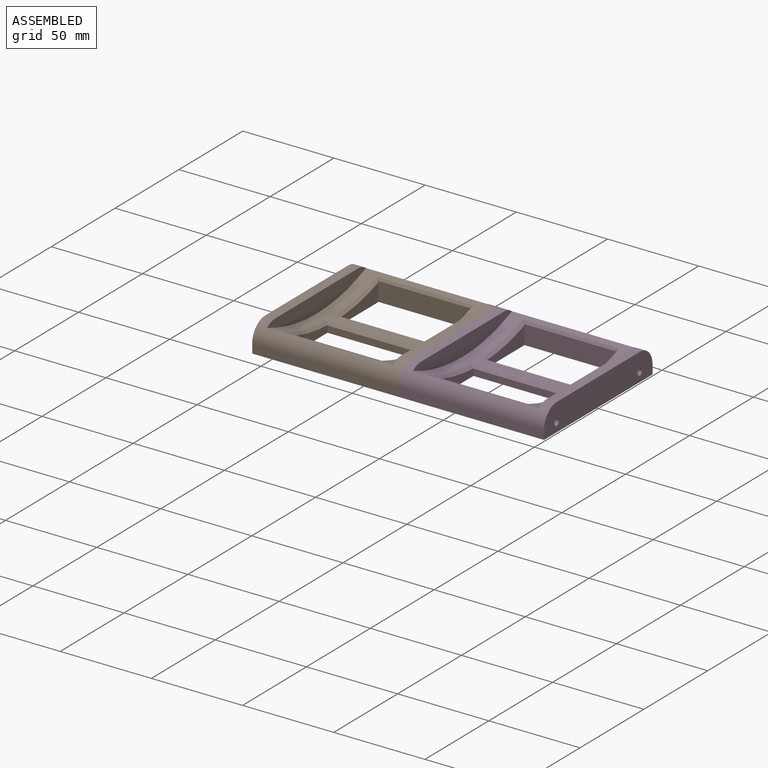
[diagram: assembled view]
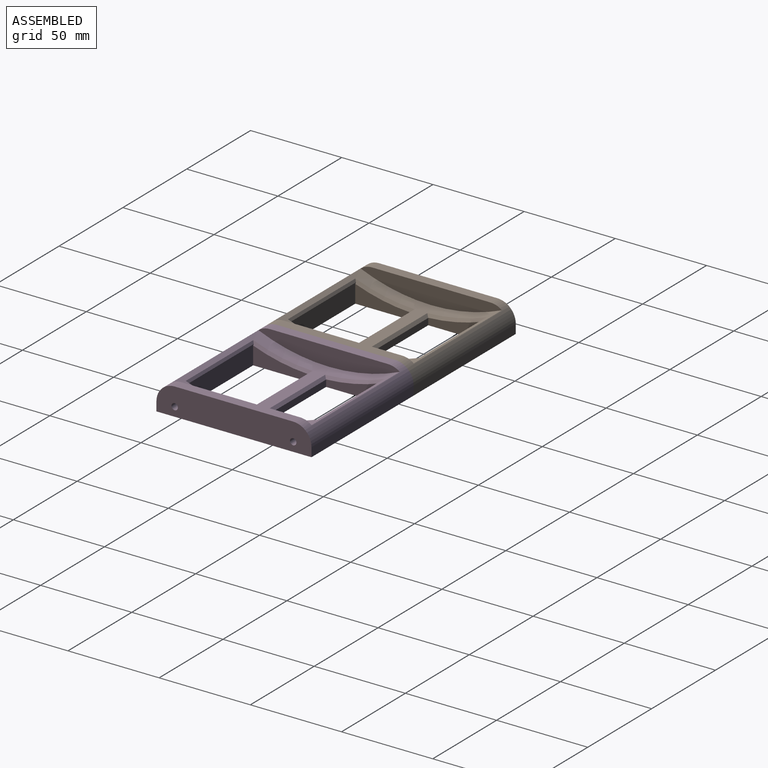
[diagram: assembled view, second angle]
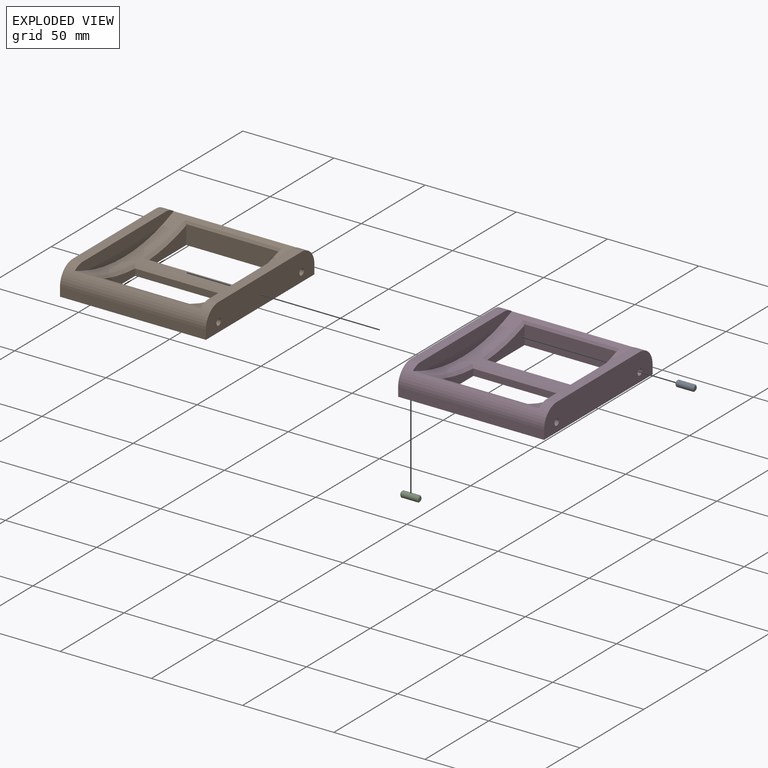
[diagram: exploded view]
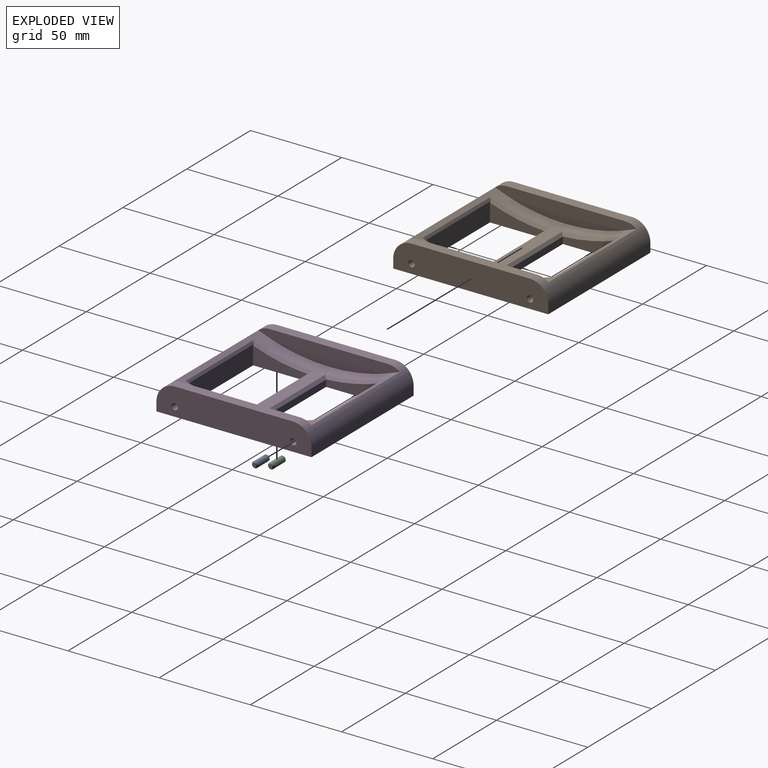
[diagram: exploded view, second angle]
ASSEMBLY  parts=4 mates=7
PART A: 5 faces, bbox 3.4x3.4x10 mm
  f0: cylinder r=1.7mm len=9mm, axis (0,0,-1), area 96.1mm2, adj f3,f4
  f1: plane 2.4x2.4mm, normal (0,0,1), area 4.5mm2, adj f3
  f2: plane 2.4x2.4mm, normal (0,0,-1), area 4.5mm2, adj f4
  f3: cone r=1.2mm half-angle=45deg, axis (0,0,-1), area 6.4mm2, adj f0,f1
  f4: cone r=1.7mm half-angle=45deg, axis (0,0,1), area 6.4mm2, adj f0,f2
PART B: 36 faces, bbox 80x85x15 mm
  f0: plane 30.06x9.79mm, normal (-1,0,0), area 178.3mm2, adj f8,f13,f16,f26,f27
  f1: plane 30.06x9.79mm, normal (1,0,0), area 178.3mm2, adj f8,f13,f16,f24,f26
  f2: plane 80x5mm, normal (0,-1,0), area 400mm2, adj f5,f6,f8,f19
  f3: plane 80x5mm, normal (0,1,0), area 400mm2, adj f5,f6,f8,f18
  f4: plane 65x5.5mm, normal (0,0,1), area 357.5mm2, adj f6,f10,f18,f19
  f5: plane 85x15mm, normal (1,0,0), area 1212.8mm2, adj f2,f3,f7,f8,f18,f19,f28,f30
  f6: plane 85x15mm, normal (-1,0,0), area 1212.8mm2, adj f2,f3,f4,f8,f18,f19,f32,f34
  f7: plane 65x5.5mm, normal (0,0,1), area 357.5mm2, adj f5,f11,f18,f19
  f8: plane 85x80mm, normal (0,0,-1), area 3800mm2, adj f0,f1,f2,f3,f5,f6,f12,f13
  f9: cylinder r=100mm len=77.49mm, axis (1,0,0), area 1975.3mm2, adj f10,f11,f18,f19,f20,f21,f22,f23
  f10: plane 77.49x10mm, normal (1,0,0), area 567.7mm2, adj f4,f9,f18,f19
  f11: plane 77.49x10mm, normal (-1,0,0), area 567.7mm2, adj f7,f9,f18,f19
  f12: plane 30.06x9.79mm, normal (-1,0,0), area 178.3mm2, adj f8,f15,f17,f21,f23
  f13: plane 51.02x10.33mm, normal (0,-1,0), area 516.8mm2, adj f0,f1,f8,f24,f25,f27
  f14: plane 30.06x9.79mm, normal (1,0,0), area 178.3mm2, adj f8,f15,f17,f20,f21
  f15: plane 51.02x10.33mm, normal (0,1,0), area 516.8mm2, adj f8,f12,f14,f20,f22,f23
  f16: plane 50x3.62mm, normal (0,1,0), area 181.1mm2, adj f0,f1,f8,f26
  f17: plane 50x3.62mm, normal (0,-1,0), area 181.1mm2, adj f8,f12,f14,f21
  f18: cylinder r=10mm len=80mm, axis (1,0,0), area 791.3mm2, adj f3,f4,f5,f6,f7,f9,f10,f11
  f19: cylinder r=10mm len=80mm, axis (-1,0,0), area 791.3mm2, adj f2,f4,f5,f6,f7,f9,f10,f11
  f20: cone r=101.44mm half-angle=45deg, axis (1,0,0), area 64.9mm2, adj f9,f14,f15,f21,f22
  f21: plane 52.89x1.5mm, normal (0,-0.69,0.72), area 106.6mm2, adj f9,f12,f14,f17,f20,f23
  f22: plane 52.89x1.35mm, normal (0,0.82,0.57), area 84.8mm2, adj f9,f15,f20,f23
  f23: cone r=100mm half-angle=45deg, axis (-1,0,0), area 64.9mm2, adj f9,f12,f15,f21,f22
  f24: cone r=101.44mm half-angle=45deg, axis (1,0,0), area 64.9mm2, adj f1,f9,f13,f25,f26
  f25: plane 52.89x1.35mm, normal (0,-0.82,0.57), area 84.8mm2, adj f9,f13,f24,f27
  f26: plane 52.89x1.5mm, normal (0,0.69,0.72), area 106.6mm2, adj f0,f1,f9,f16,f24,f27
  f27: cone r=100mm half-angle=45deg, axis (-1,0,0), area 64.9mm2, adj f0,f9,f13,f25,f26
  f28: cylinder r=1.75mm len=5mm, axis (1,0,0), area 55mm2, adj f5,f29
  f29: plane 3.5x3.5mm, normal (1,0,0), area 9.6mm2, adj f28
  f30: cylinder r=1.75mm len=5mm, axis (1,0,0), area 55mm2, adj f5,f31
  f31: plane 3.5x3.5mm, normal (1,0,0), area 9.6mm2, adj f30
  f32: cylinder r=1.75mm len=5mm, axis (-1,0,0), area 55mm2, adj f6,f33
  f33: plane 3.5x3.5mm, normal (-1,0,0), area 9.6mm2, adj f32
  f34: cylinder r=1.75mm len=5mm, axis (-1,0,0), area 55mm2, adj f6,f35
  f35: plane 3.5x3.5mm, normal (-1,0,0), area 9.6mm2, adj f34
PART C: same geometry as A
PART D: same geometry as B
PLACE A rot(axis=(-0.58,-0.58,0.58),120deg) t=(45,32.5,5)mm
PLACE B at identity
PLACE C rot(axis=(0.71,0,-0.71),180deg) t=(45,-32.5,5)mm
PLACE D t=(80,0,0)mm
MATE planar A.f0 <-> B.f18  axis (-1,0,0) through (35,32.5,5)mm
MATE cylindrical A.f0 <-> B.f18  axis (1,0,0) through (40,32.5,5)mm
MATE cylindrical A.f0 <-> D.f18  axis (1,0,0) through (40,32.5,5)mm
MATE cylindrical D.f19 <-> C.f0  axis (-1,0,0) through (40,-32.5,5)mm
MATE cylindrical C.f0 <-> B.f19  axis (1,0,0) through (40,-32.5,5)mm
MATE planar C.f0 <-> B.f19  axis (-1,0,0) through (35,-32.5,5)mm
MATE planar D.f6 <-> B.f5  axis (-1,0,0) through (40,0,15)mm
